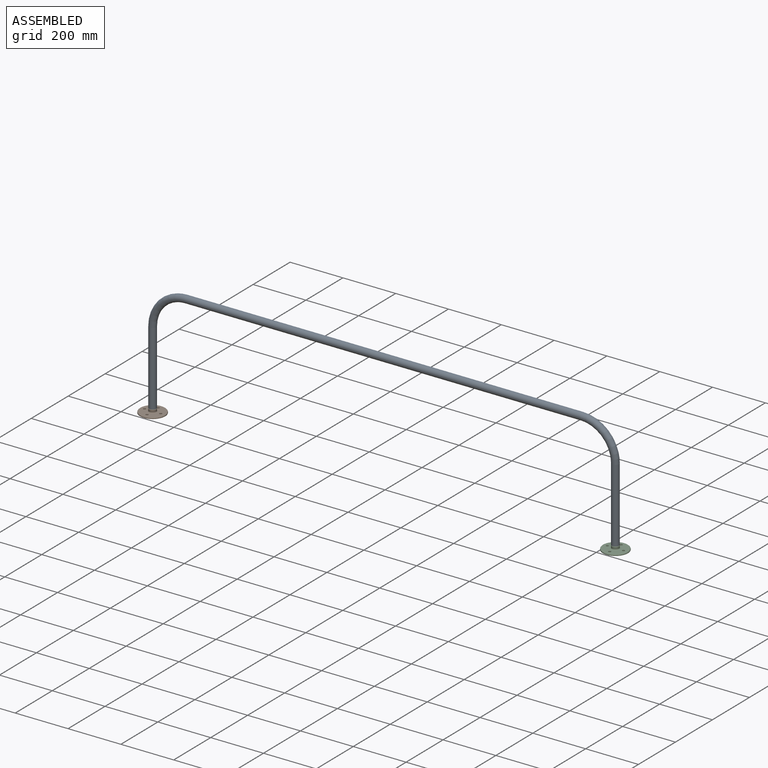
[diagram: assembled view]
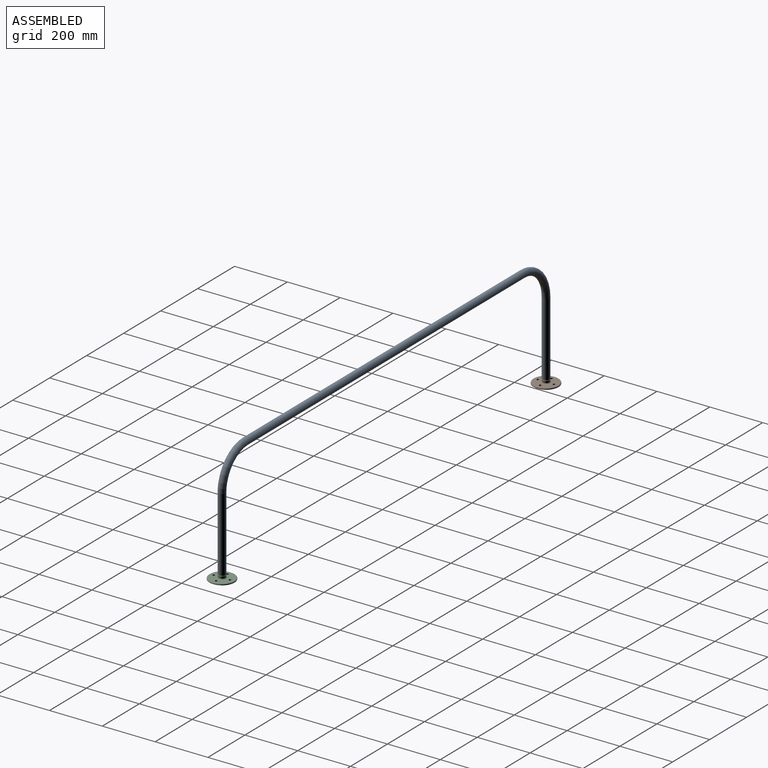
[diagram: assembled view, second angle]
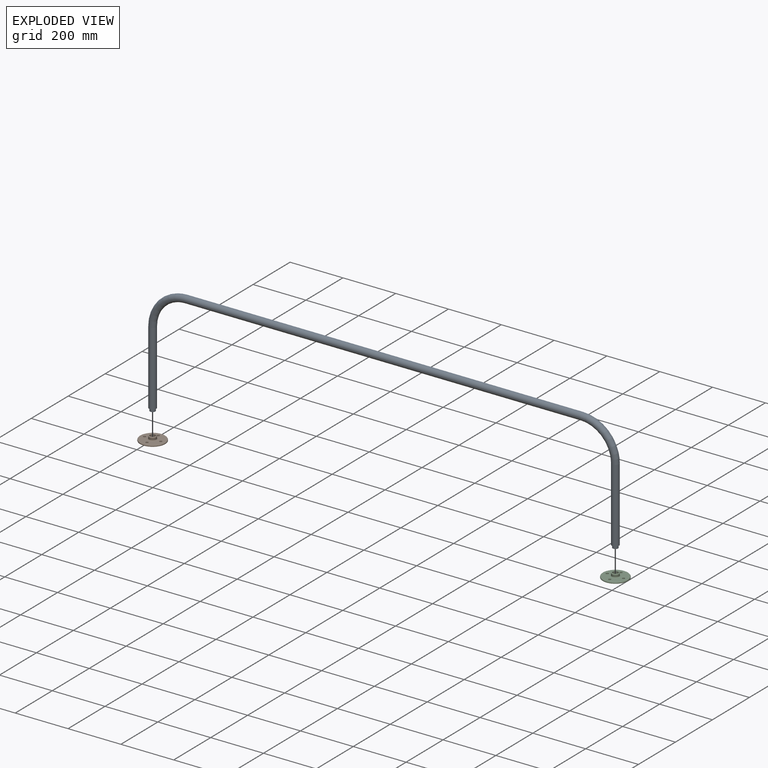
[diagram: exploded view]
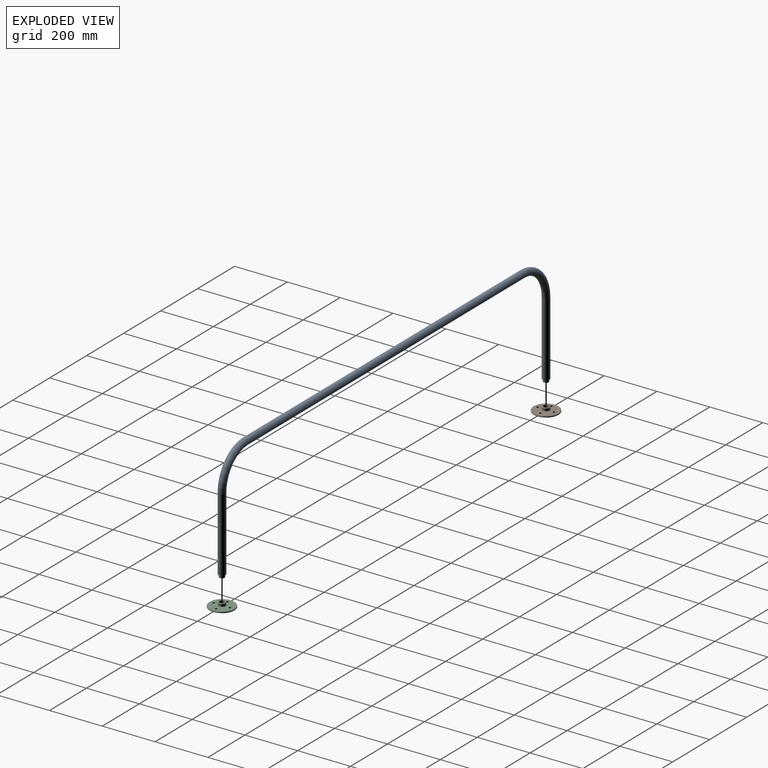
[diagram: exploded view, second angle]
ASSEMBLY  parts=3 mates=2
PART A: 16 faces, bbox 1802.9x27.2x441.7 mm
  f0: cylinder r=13.59mm len=1498.6mm, axis (1,0,0), area 127953.8mm2, adj f1,f9
  f1: torus R=127mm, axis (0,1,0), area 17033mm2, adj f0,f2
  f2: cylinder r=13.59mm len=279.4mm, axis (0,0,-1), area 23855.8mm2, adj f1,f3
  f3: plane 27.18x27.18mm, normal (0,0,-1), area 255.8mm2, adj f2,f8
  f4: cylinder r=7.62mm len=1498.6mm, axis (1,0,0), area 71749.8mm2, adj f5,f12
  f5: torus R=127mm, axis (0,1,0), area 9551.2mm2, adj f4,f6
  f6: cylinder r=7.62mm len=289.56mm, axis (0,0,-1), area 13863.5mm2, adj f5,f7
  f7: plane 20.32x20.32mm, normal (0,0,-1), area 141.9mm2, adj f6,f8
  f8: cylinder r=10.16mm len=20.32mm, axis (0,0,-1), area 648.6mm2, adj f3,f7
  f9: torus R=127mm, axis (0,1,0), area 17033mm2, adj f0,f10
  f10: cylinder r=13.59mm len=279.4mm, axis (0,0,-1), area 23855.8mm2, adj f9,f11
  f11: plane 27.18x27.18mm, normal (0,0,-1), area 255.8mm2, adj f10,f15
  f12: torus R=127mm, axis (0,1,0), area 9551.2mm2, adj f4,f13
  f13: cylinder r=7.62mm len=289.56mm, axis (0,0,-1), area 13863.5mm2, adj f12,f14
  f14: plane 20.32x20.32mm, normal (0,0,-1), area 141.9mm2, adj f13,f15
  f15: cylinder r=10.16mm len=20.32mm, axis (0,0,-1), area 648.6mm2, adj f11,f14
PART B: 15 faces, bbox 103.1x103.1x16.5 mm
  f0: cylinder r=4.76mm len=9.53mm, axis (0,0,1), area 142.5mm2, adj f7,f9
  f1: cylinder r=4.76mm len=9.53mm, axis (0,0,1), area 142.5mm2, adj f7,f9
  f2: cylinder r=4.76mm len=9.53mm, axis (0,0,1), area 142.5mm2, adj f7,f9
  f3: plane 22.1x22.1mm, normal (0,0,1), area 59.2mm2, adj f4,f13
  f4: cylinder r=10.16mm len=20.32mm, axis (0,0,-1), area 648.6mm2, adj f3,f5
  f5: plane 20.32x20.32mm, normal (0,0,1), area 141.9mm2, adj f4,f6
  f6: cylinder r=7.62mm len=15.24mm, axis (0,0,-1), area 304mm2, adj f5,f7
  f7: plane 95.25x95.25mm, normal (0,0,-1), area 6658.1mm2, adj f0,f1,f2,f6,f8,f14
  f8: cylinder r=47.62mm len=95.25mm, axis (0,0,-1), area 665.1mm2, adj f7,f11
  f9: plane 90.17x90.17mm, normal (0,0,1), area 5283.5mm2, adj f0,f1,f2,f11,f12,f14
  f10: cylinder r=13.59mm len=27.18mm, axis (0,0,-1), area 569.3mm2, adj f12,f13
  f11: torus R=45.09mm, axis (0,0,-1), area 1170.8mm2, adj f8,f9
  f12: torus R=16.13mm, axis (0,0,-1), area 363.8mm2, adj f9,f10
  f13: torus R=11.05mm, axis (0,0,-1), area 317.5mm2, adj f3,f10
  f14: cylinder r=4.76mm len=9.53mm, axis (0,0,1), area 142.5mm2, adj f7,f9
PART C: same geometry as B
PLACE A t=(876.3,0,422.91)mm
PLACE B at identity
PLACE C t=(1752.6,0,0)mm
MATE fastened A.f10 <-> B.f4  axis (0,0,-1) through (0,0,16.51)mm
MATE fastened C.f4 <-> A.f2  axis (0,0,1) through (1752.6,0,16.51)mm
